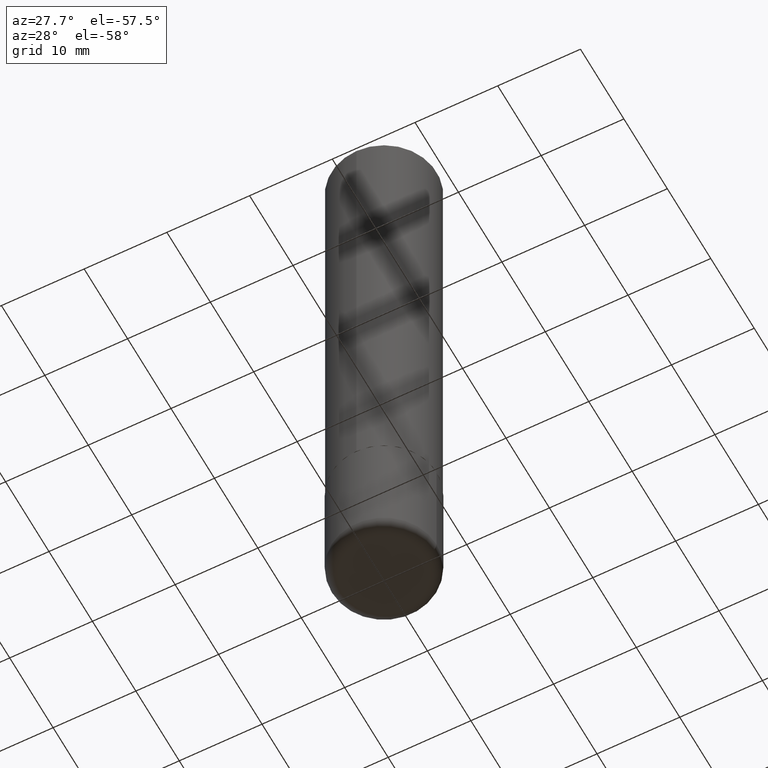
[diagram: clean part render]
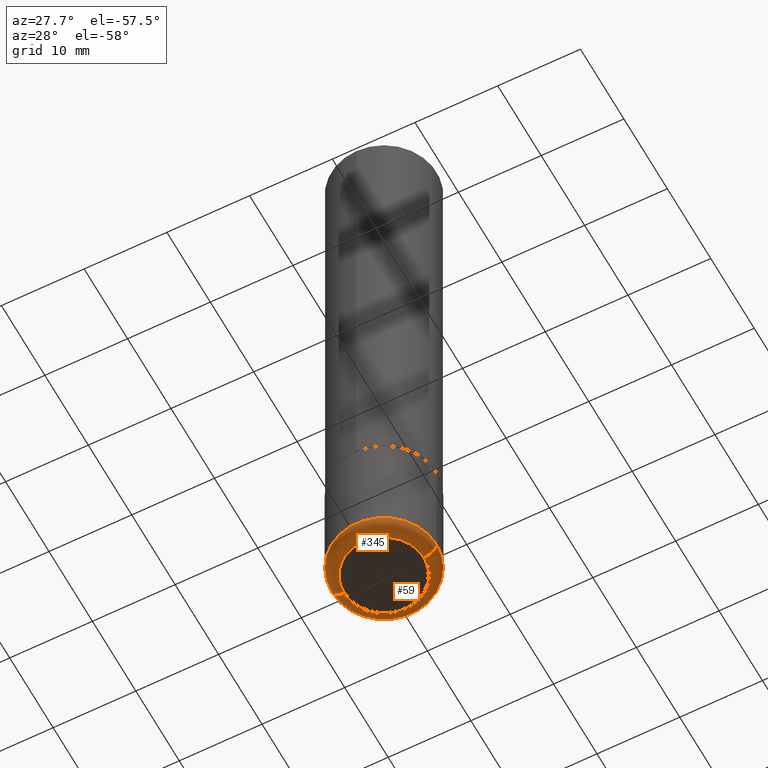
[diagram: same view with one multi-face feature highlighted, each face labeled with its STEP entity id]
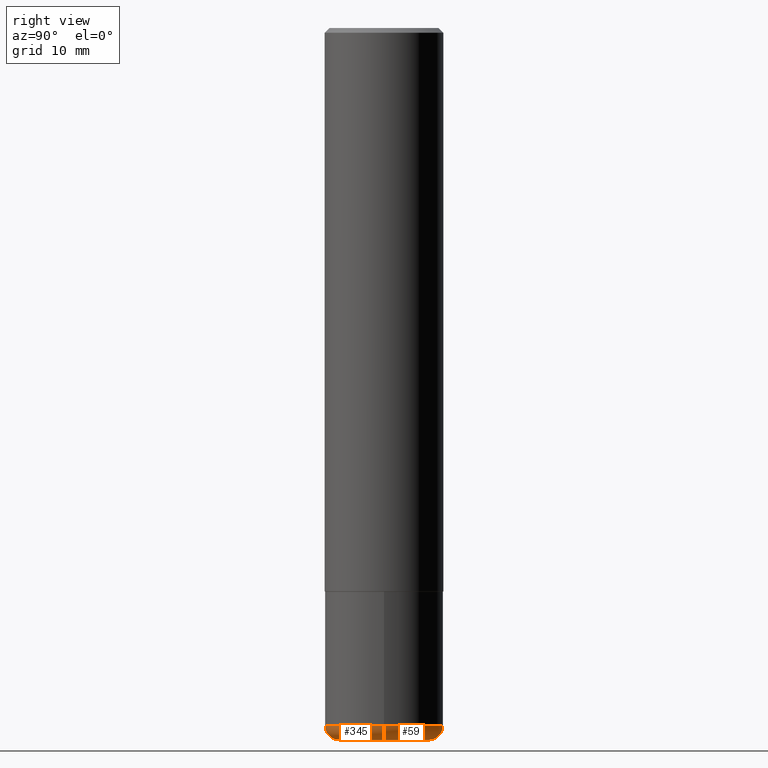
[diagram: same view with one multi-face feature highlighted, each face labeled with its STEP entity id]
A machine part, auxiliary view. The highlighted faces form ONE feature: a constant-radius fillet chain: 2 tangent blend faces with common blend radius 1.524 mm. The faces share edges in the B-rep.
A second angle (right view) of the same feature is appended — it is thin or edge-on in the first view.
Their STEP definitions:
[1] entity #59 (Torus):
#29 = AXIS2_PLACEMENT_3D ( 'NONE', #249, #281, #352 ) ;
#32 = CARTESIAN_POINT ( 'NONE',  ( 7.336406418555409790E-29, -1.047444401652943635E-14, -3.000000000000000444 ) ) ;
#38 = VERTEX_POINT ( 'NONE', #150 ) ;
#49 = EDGE_CURVE ( 'NONE', #38, #94, #415, .T. ) ;
#59 = ADVANCED_FACE ( 'NONE', ( #217 ), #115, .T. ) ;
#83 = DIRECTION ( 'NONE',  ( -1.000000000000000000, 7.105427357600997914E-15, 0.000000000000000000 ) ) ;
#85 = EDGE_CURVE ( 'NONE', #268, #38, #148, .T. ) ;
#94 = VERTEX_POINT ( 'NONE', #391 ) ;
#108 = CARTESIAN_POINT ( 'NONE',  ( 0.2499999999999999722, -1.201069580562041471E-14, -2.940000000000000391 ) ) ;
#115 = TOROIDAL_SURFACE ( 'NONE', #251, 0.1899999999999999745, 0.05999999999999995615 ) ;
#129 = DIRECTION ( 'NONE',  ( -2.445468806185136597E-29, 3.491481338843145583E-15, 1.000000000000000000 ) ) ;
#148 = CIRCLE ( 'NONE', #354, 0.1899999999999999745 ) ;
#150 = CARTESIAN_POINT ( 'NONE',  ( -0.1899999999999999745, -8.806505557691924342E-15, -3.000000000000000444 ) ) ;
#153 = EDGE_CURVE ( 'NONE', #268, #204, #222, .T. ) ;
#157 = ORIENTED_EDGE ( 'NONE', *, *, #49, .T. ) ;
#162 = DIRECTION ( 'NONE',  ( -6.982962677686266711E-15, -1.000000000000000000, 3.491481338843145583E-15 ) ) ;
#163 = ORIENTED_EDGE ( 'NONE', *, *, #314, .F. ) ;
#165 = EDGE_LOOP ( 'NONE', ( #221, #157, #163, #399 ) ) ;
#171 = CARTESIAN_POINT ( 'NONE',  ( 0.1899999999999999745, -1.180120692528982640E-14, -3.000000000000000444 ) ) ;
#182 = CARTESIAN_POINT ( 'NONE',  ( 7.189678290184301639E-29, -1.026495513619884961E-14, -2.940000000000000391 ) ) ;
#204 = VERTEX_POINT ( 'NONE', #108 ) ;
#217 = FACE_OUTER_BOUND ( 'NONE', #165, .T. ) ;
#221 = ORIENTED_EDGE ( 'NONE', *, *, #85, .T. ) ;
#222 = CIRCLE ( 'NONE', #409, 0.05999999999999994227 ) ;
#235 = AXIS2_PLACEMENT_3D ( 'NONE', #349, #293, #83 ) ;
#249 = CARTESIAN_POINT ( 'NONE',  ( 7.189678290184301639E-29, -1.026495513619884961E-14, -2.940000000000000391 ) ) ;
#251 = AXIS2_PLACEMENT_3D ( 'NONE', #182, #326, #321 ) ;
#266 = DIRECTION ( 'NONE',  ( 1.000000000000000000, -6.982962677686274599E-15, 0.000000000000000000 ) ) ;
#268 = VERTEX_POINT ( 'NONE', #171 ) ;
#281 = DIRECTION ( 'NONE',  ( -2.445468806185136597E-29, 3.491481338843145583E-15, 1.000000000000000000 ) ) ;
#290 = CIRCLE ( 'NONE', #29, 0.2500000000000000000 ) ;
#293 = DIRECTION ( 'NONE',  ( 7.105427357601001859E-15, 1.000000000000000000, -3.491481338843145583E-15 ) ) ;
#314 = EDGE_CURVE ( 'NONE', #204, #94, #290, .T. ) ;
#321 = DIRECTION ( 'NONE',  ( 1.000000000000000000, -6.982962677686265133E-15, 4.883557194083112340E-29 ) ) ;
#326 = DIRECTION ( 'NONE',  ( -2.445468806185136597E-29, 3.491481338843145583E-15, 1.000000000000000000 ) ) ;
#349 = CARTESIAN_POINT ( 'NONE',  ( -0.1899999999999999745, -8.914923938254659640E-15, -2.940000000000000391 ) ) ;
#352 = DIRECTION ( 'NONE',  ( 1.000000000000000000, -6.982962677686262766E-15, 0.000000000000000000 ) ) ;
#354 = AXIS2_PLACEMENT_3D ( 'NONE', #32, #129, #361 ) ;
#361 = DIRECTION ( 'NONE',  ( 1.000000000000000000, -6.982962677686261977E-15, 0.000000000000000000 ) ) ;
#363 = CARTESIAN_POINT ( 'NONE',  ( 0.1899999999999999745, -1.159171804495923808E-14, -2.940000000000000391 ) ) ;
#391 = CARTESIAN_POINT ( 'NONE',  ( -0.2499999999999999722, -8.488598296798599150E-15, -2.940000000000000391 ) ) ;
#399 = ORIENTED_EDGE ( 'NONE', *, *, #153, .F. ) ;
#409 = AXIS2_PLACEMENT_3D ( 'NONE', #363, #162, #266 ) ;
#415 = CIRCLE ( 'NONE', #235, 0.05999999999999994227 ) ;
[2] entity #345 (Torus):
#2 = DIRECTION ( 'NONE',  ( -2.445468806185136597E-29, 3.491481338843145583E-15, 1.000000000000000000 ) ) ;
#9 = DIRECTION ( 'NONE',  ( -2.445468806185136597E-29, 3.491481338843145583E-15, 1.000000000000000000 ) ) ;
#38 = VERTEX_POINT ( 'NONE', #150 ) ;
#49 = EDGE_CURVE ( 'NONE', #38, #94, #415, .T. ) ;
#79 = DIRECTION ( 'NONE',  ( -2.445468806185136597E-29, 3.491481338843145583E-15, 1.000000000000000000 ) ) ;
#83 = DIRECTION ( 'NONE',  ( -1.000000000000000000, 7.105427357600997914E-15, 0.000000000000000000 ) ) ;
#84 = ORIENTED_EDGE ( 'NONE', *, *, #153, .T. ) ;
#86 = CIRCLE ( 'NONE', #188, 0.1899999999999999745 ) ;
#94 = VERTEX_POINT ( 'NONE', #391 ) ;
#96 = EDGE_CURVE ( 'NONE', #94, #204, #159, .T. ) ;
#105 = CARTESIAN_POINT ( 'NONE',  ( 7.336406418555409790E-29, -1.047444401652943635E-14, -3.000000000000000444 ) ) ;
#108 = CARTESIAN_POINT ( 'NONE',  ( 0.2499999999999999722, -1.201069580562041471E-14, -2.940000000000000391 ) ) ;
#127 = DIRECTION ( 'NONE',  ( 1.000000000000000000, -6.982962677686262766E-15, 0.000000000000000000 ) ) ;
#150 = CARTESIAN_POINT ( 'NONE',  ( -0.1899999999999999745, -8.806505557691924342E-15, -3.000000000000000444 ) ) ;
#153 = EDGE_CURVE ( 'NONE', #268, #204, #222, .T. ) ;
#154 = CARTESIAN_POINT ( 'NONE',  ( 7.189678290184301639E-29, -1.026495513619884961E-14, -2.940000000000000391 ) ) ;
#159 = CIRCLE ( 'NONE', #180, 0.2500000000000000000 ) ;
#162 = DIRECTION ( 'NONE',  ( -6.982962677686266711E-15, -1.000000000000000000, 3.491481338843145583E-15 ) ) ;
#171 = CARTESIAN_POINT ( 'NONE',  ( 0.1899999999999999745, -1.180120692528982640E-14, -3.000000000000000444 ) ) ;
#180 = AXIS2_PLACEMENT_3D ( 'NONE', #154, #2, #127 ) ;
#188 = AXIS2_PLACEMENT_3D ( 'NONE', #105, #9, #242 ) ;
#189 = AXIS2_PLACEMENT_3D ( 'NONE', #254, #79, #278 ) ;
#193 = EDGE_CURVE ( 'NONE', #38, #268, #86, .T. ) ;
#204 = VERTEX_POINT ( 'NONE', #108 ) ;
#220 = EDGE_LOOP ( 'NONE', ( #307, #367, #84, #300 ) ) ;
#222 = CIRCLE ( 'NONE', #409, 0.05999999999999994227 ) ;
#235 = AXIS2_PLACEMENT_3D ( 'NONE', #349, #293, #83 ) ;
#242 = DIRECTION ( 'NONE',  ( 1.000000000000000000, -6.982962677686261977E-15, 0.000000000000000000 ) ) ;
#254 = CARTESIAN_POINT ( 'NONE',  ( 7.189678290184301639E-29, -1.026495513619884961E-14, -2.940000000000000391 ) ) ;
#266 = DIRECTION ( 'NONE',  ( 1.000000000000000000, -6.982962677686274599E-15, 0.000000000000000000 ) ) ;
#268 = VERTEX_POINT ( 'NONE', #171 ) ;
#278 = DIRECTION ( 'NONE',  ( 1.000000000000000000, -6.982962677686265133E-15, 4.883557194083112340E-29 ) ) ;
#293 = DIRECTION ( 'NONE',  ( 7.105427357601001859E-15, 1.000000000000000000, -3.491481338843145583E-15 ) ) ;
#300 = ORIENTED_EDGE ( 'NONE', *, *, #96, .F. ) ;
#307 = ORIENTED_EDGE ( 'NONE', *, *, #49, .F. ) ;
#345 = ADVANCED_FACE ( 'NONE', ( #378 ), #376, .T. ) ;
#349 = CARTESIAN_POINT ( 'NONE',  ( -0.1899999999999999745, -8.914923938254659640E-15, -2.940000000000000391 ) ) ;
#363 = CARTESIAN_POINT ( 'NONE',  ( 0.1899999999999999745, -1.159171804495923808E-14, -2.940000000000000391 ) ) ;
#367 = ORIENTED_EDGE ( 'NONE', *, *, #193, .T. ) ;
#376 = TOROIDAL_SURFACE ( 'NONE', #189, 0.1899999999999999745, 0.05999999999999995615 ) ;
#378 = FACE_OUTER_BOUND ( 'NONE', #220, .T. ) ;
#391 = CARTESIAN_POINT ( 'NONE',  ( -0.2499999999999999722, -8.488598296798599150E-15, -2.940000000000000391 ) ) ;
#409 = AXIS2_PLACEMENT_3D ( 'NONE', #363, #162, #266 ) ;
#415 = CIRCLE ( 'NONE', #235, 0.05999999999999994227 ) ;